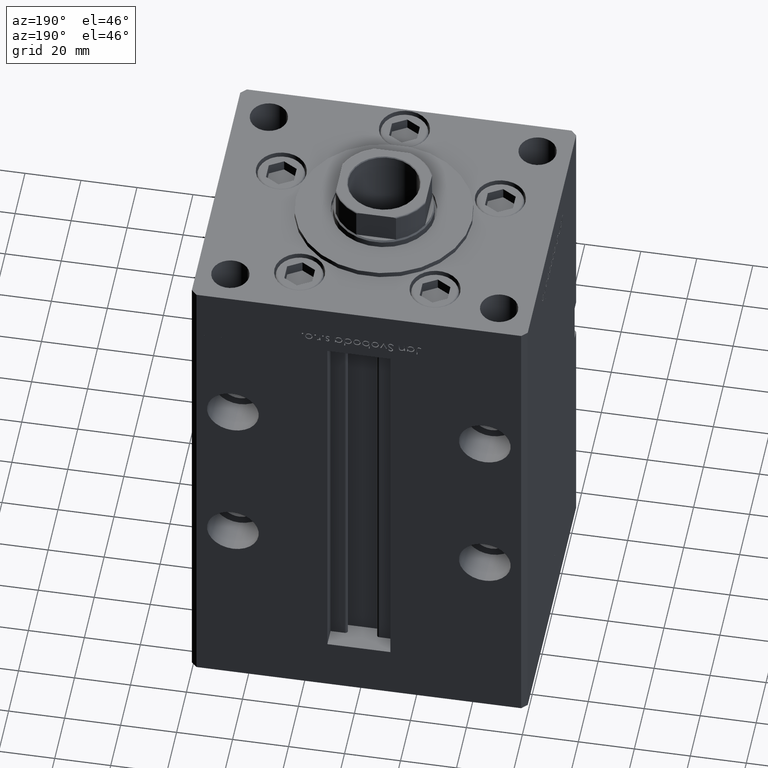
[diagram: clean part render]
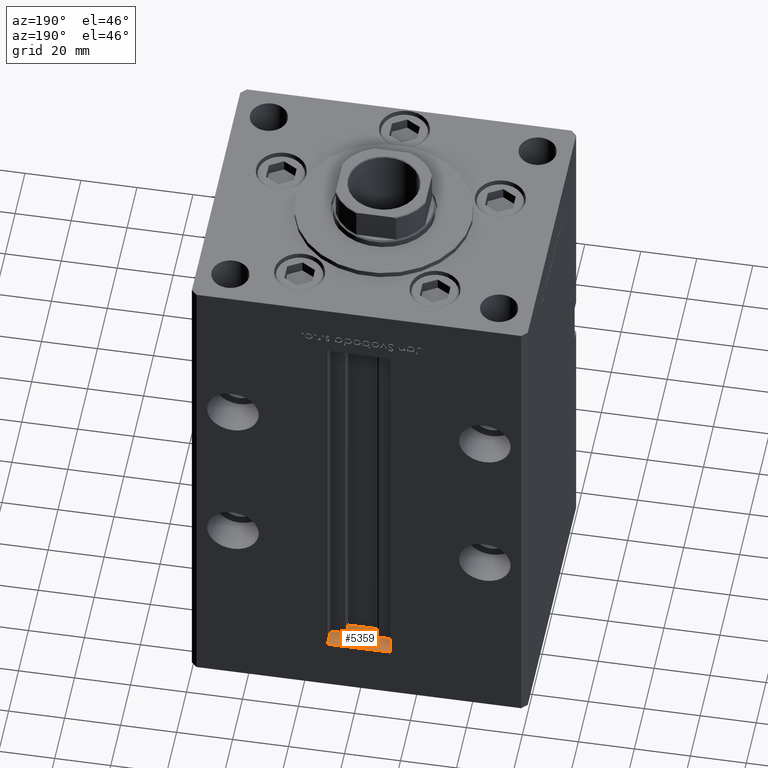
[diagram: same view with one face highlighted and labeled with its STEP entity id]
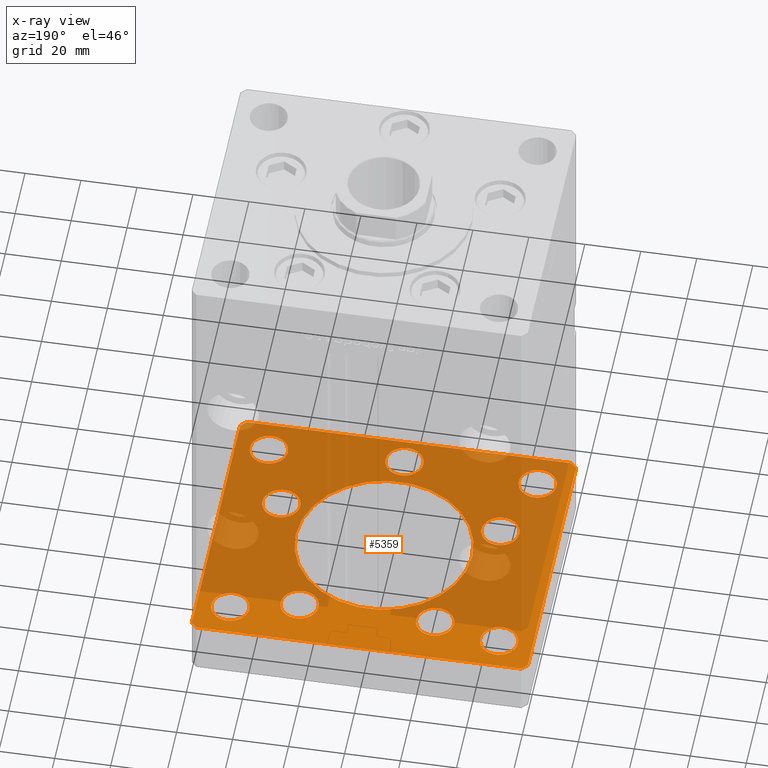
[diagram: x-ray of the same camera — body ghosted, the highlighted face saturated]
A machine part, auxiliary view. The second image highlights one B-rep face of the part: STEP entity #5359.
The next image is the same camera in x-ray: the body ghosted, the highlighted face saturated — about 74% of this face is hidden behind the body in this view.
In plain terms, the highlighted planar face has unit normal (0, 0, -1).
Its self-contained STEP definition (entity closure, byte-faithful):
#24 = AXIS2_PLACEMENT_3D ( 'NONE', #49229, #52721, #40404 ) ;
#58 = DIRECTION ( 'NONE',  ( 0.000000000000000000, -0.000000000000000000, -1.000000000000000000 ) ) ;
#188 = EDGE_CURVE ( 'NONE', #40226, #52494, #6678, .T. ) ;
#453 = ORIENTED_EDGE ( 'NONE', *, *, #52392, .T. ) ;
#635 = EDGE_CURVE ( 'NONE', #25188, #37324, #7538, .T. ) ;
#658 = CARTESIAN_POINT ( 'NONE',  ( -48.00000000000000000, 39.00000000000000000, -20.00000000000000000 ) ) ;
#704 = DIRECTION ( 'NONE',  ( -0.000000000000000000, -0.000000000000000000, -1.000000000000000000 ) ) ;
#788 = EDGE_LOOP ( 'NONE', ( #5692, #34597 ) ) ;
#973 = DIRECTION ( 'NONE',  ( 1.000000000000000000, 0.000000000000000000, 0.000000000000000000 ) ) ;
#1084 = DIRECTION ( 'NONE',  ( 1.000000000000000000, 0.000000000000000000, 0.000000000000000000 ) ) ;
#1179 = DIRECTION ( 'NONE',  ( 0.000000000000000000, -0.000000000000000000, -1.000000000000000000 ) ) ;
#1357 = ORIENTED_EDGE ( 'NONE', *, *, #23489, .F. ) ;
#1567 = AXIS2_PLACEMENT_3D ( 'NONE', #8333, #41565, #32993 ) ;
#1675 = CIRCLE ( 'NONE', #5072, 6.749999999999999112 ) ;
#1976 = LINE ( 'NONE', #38967, #15994 ) ;
#2036 = CARTESIAN_POINT ( 'NONE',  ( -45.87657522565562829, -13.83333333333333925, -20.00000000000000000 ) ) ;
#2358 = EDGE_CURVE ( 'NONE', #39628, #47877, #22417, .T. ) ;
#2520 = DIRECTION ( 'NONE',  ( 0.000000000000000000, -0.000000000000000000, -1.000000000000000000 ) ) ;
#2611 = DIRECTION ( 'NONE',  ( -1.000000000000000000, -2.392722035830079958E-16, 0.000000000000000000 ) ) ;
#2921 = VECTOR ( 'NONE', #37451, 1000.000000000000000 ) ;
#2968 = LINE ( 'NONE', #42726, #51346 ) ;
#3139 = CARTESIAN_POINT ( 'NONE',  ( 57.99999999999993605, 51.00000000000000711, -20.00000000000000000 ) ) ;
#3150 = CIRCLE ( 'NONE', #48545, 6.749999999999999112 ) ;
#3283 = VERTEX_POINT ( 'NONE', #14307 ) ;
#3291 = ORIENTED_EDGE ( 'NONE', *, *, #38040, .F. ) ;
#3431 = CIRCLE ( 'NONE', #32548, 6.749999999999999112 ) ;
#3681 = LINE ( 'NONE', #20566, #15436 ) ;
#3935 = FACE_BOUND ( 'NONE', #39755, .T. ) ;
#3958 = VERTEX_POINT ( 'NONE', #24824 ) ;
#4201 = DIRECTION ( 'NONE',  ( -0.7071067811865451302, -0.7071067811865500152, 0.000000000000000000 ) ) ;
#4332 = CARTESIAN_POINT ( 'NONE',  ( 0.000000000000000000, 0.000000000000000000, -20.00000000000000000 ) ) ;
#4767 = CARTESIAN_POINT ( 'NONE',  ( 45.87657522565562829, -13.83333333333332860, -20.00000000000000000 ) ) ;
#4934 = VERTEX_POINT ( 'NONE', #38057 ) ;
#4960 = EDGE_CURVE ( 'NONE', #15959, #14660, #13665, .T. ) ;
#5072 = AXIS2_PLACEMENT_3D ( 'NONE', #5196, #1179, #29849 ) ;
#5196 = CARTESIAN_POINT ( 'NONE',  ( -39.12657522565562829, -13.83333333333333925, -20.00000000000000000 ) ) ;
#5237 = DIRECTION ( 'NONE',  ( -1.000000000000000000, 0.000000000000000000, 0.000000000000000000 ) ) ;
#5359 = ADVANCED_FACE ( 'NONE', ( #45210, #3935, #40658, #20298, #32345, #24057, #32618, #28838, #20037, #23776, #48706 ), #37163, .F. ) ;
#5692 = ORIENTED_EDGE ( 'NONE', *, *, #635, .F. ) ;
#5820 = CARTESIAN_POINT ( 'NONE',  ( -48.00000000000000000, 39.00000000000000000, -20.00000000000000000 ) ) ;
#5989 = DIRECTION ( 'NONE',  ( 1.000000000000000000, 0.000000000000000000, 0.000000000000000000 ) ) ;
#6029 = CARTESIAN_POINT ( 'NONE',  ( -31.50000000000000000, 3.857637417314161900E-15, -20.00000000000000000 ) ) ;
#6525 = VECTOR ( 'NONE', #2611, 1000.000000000000000 ) ;
#6678 = CIRCLE ( 'NONE', #44366, 6.749999999999999112 ) ;
#6736 = DIRECTION ( 'NONE',  ( -1.000000000000000000, 0.000000000000000000, 0.000000000000000000 ) ) ;
#6974 = CARTESIAN_POINT ( 'NONE',  ( 59.99999999999994316, 49.00000000000000000, -20.00000000000000000 ) ) ;
#7070 = DIRECTION ( 'NONE',  ( -1.000000000000000000, 0.000000000000000000, 0.000000000000000000 ) ) ;
#7417 = CIRCLE ( 'NONE', #33923, 6.749999999999999112 ) ;
#7538 = CIRCLE ( 'NONE', #52940, 6.749999999999999112 ) ;
#7645 = EDGE_LOOP ( 'NONE', ( #1357, #3291 ) ) ;
#7961 = DIRECTION ( 'NONE',  ( 1.000000000000000000, 0.000000000000000000, 0.000000000000000000 ) ) ;
#8221 = DIRECTION ( 'NONE',  ( 0.000000000000000000, -0.000000000000000000, -1.000000000000000000 ) ) ;
#8333 = CARTESIAN_POINT ( 'NONE',  ( 39.12657522565562829, -13.83333333333332860, -20.00000000000000000 ) ) ;
#8377 = VERTEX_POINT ( 'NONE', #16500 ) ;
#8450 = CARTESIAN_POINT ( 'NONE',  ( 5.082284216461515748E-15, -41.50000000000000000, -20.00000000000000000 ) ) ;
#8465 = VECTOR ( 'NONE', #34714, 1000.000000000000000 ) ;
#8496 = EDGE_CURVE ( 'NONE', #48872, #11826, #1675, .T. ) ;
#9548 = ORIENTED_EDGE ( 'NONE', *, *, #34003, .F. ) ;
#9954 = VERTEX_POINT ( 'NONE', #32027 ) ;
#10329 = CARTESIAN_POINT ( 'NONE',  ( 6.750000000000004441, -41.50000000000000000, -20.00000000000000000 ) ) ;
#10368 = ORIENTED_EDGE ( 'NONE', *, *, #8496, .F. ) ;
#10475 = CARTESIAN_POINT ( 'NONE',  ( 58.00000000000000000, -51.00000000000000711, -20.00000000000000000 ) ) ;
#10612 = ORIENTED_EDGE ( 'NONE', *, *, #2358, .F. ) ;
#10729 = EDGE_CURVE ( 'NONE', #25001, #3958, #50805, .T. ) ;
#10773 = CARTESIAN_POINT ( 'NONE',  ( -48.00000000000000000, -39.00000000000000000, -20.00000000000000000 ) ) ;
#10923 = CARTESIAN_POINT ( 'NONE',  ( 60.00000000000001421, -48.99999999999999289, -20.00000000000000000 ) ) ;
#11826 = VERTEX_POINT ( 'NONE', #2036 ) ;
#11835 = CARTESIAN_POINT ( 'NONE',  ( -30.94288941894911815, 33.71875000000000000, -20.00000000000000000 ) ) ;
#11966 = CARTESIAN_POINT ( 'NONE',  ( 32.37657522565562829, -13.83333333333332860, -20.00000000000000000 ) ) ;
#13012 = DIRECTION ( 'NONE',  ( 1.000000000000000000, 0.000000000000000000, 0.000000000000000000 ) ) ;
#13063 = CARTESIAN_POINT ( 'NONE',  ( -60.00000000000000000, 48.99999999999995737, -20.00000000000000000 ) ) ;
#13145 = EDGE_CURVE ( 'NONE', #16616, #4934, #32898, .T. ) ;
#13189 = DIRECTION ( 'NONE',  ( 1.000000000000000000, 1.196361017915039486E-16, 0.000000000000000000 ) ) ;
#13665 = CIRCLE ( 'NONE', #28208, 6.749999999999999112 ) ;
#13678 = CARTESIAN_POINT ( 'NONE',  ( 24.19288941894911460, 33.71875000000000711, -20.00000000000000000 ) ) ;
#14307 = CARTESIAN_POINT ( 'NONE',  ( -57.99999999999997868, -51.00000000000001421, -20.00000000000000000 ) ) ;
#14508 = ORIENTED_EDGE ( 'NONE', *, *, #24614, .F. ) ;
#14660 = VERTEX_POINT ( 'NONE', #29977 ) ;
#14866 = DIRECTION ( 'NONE',  ( -0.000000000000000000, -0.000000000000000000, -1.000000000000000000 ) ) ;
#14887 = ORIENTED_EDGE ( 'NONE', *, *, #25359, .T. ) ;
#14939 = LINE ( 'NONE', #3139, #6525 ) ;
#15142 = VERTEX_POINT ( 'NONE', #20467 ) ;
#15240 = CIRCLE ( 'NONE', #28928, 6.749999999999999112 ) ;
#15436 = VECTOR ( 'NONE', #4201, 1000.000000000000114 ) ;
#15742 = CARTESIAN_POINT ( 'NONE',  ( 58.00000000000000000, -51.00000000000000711, -20.00000000000000000 ) ) ;
#15795 = VERTEX_POINT ( 'NONE', #11966 ) ;
#15939 = VERTEX_POINT ( 'NONE', #25331 ) ;
#15959 = VERTEX_POINT ( 'NONE', #48953 ) ;
#15994 = VECTOR ( 'NONE', #34936, 1000.000000000000000 ) ;
#16252 = DIRECTION ( 'NONE',  ( 0.000000000000000000, 0.000000000000000000, 1.000000000000000000 ) ) ;
#16299 = ORIENTED_EDGE ( 'NONE', *, *, #13145, .F. ) ;
#16500 = CARTESIAN_POINT ( 'NONE',  ( 31.50000000000000000, 0.000000000000000000, -20.00000000000000000 ) ) ;
#16616 = VERTEX_POINT ( 'NONE', #43667 ) ;
#17015 = ORIENTED_EDGE ( 'NONE', *, *, #29073, .F. ) ;
#17557 = ORIENTED_EDGE ( 'NONE', *, *, #10729, .T. ) ;
#17612 = CIRCLE ( 'NONE', #24467, 31.50000000000000000 ) ;
#18661 = ORIENTED_EDGE ( 'NONE', *, *, #52579, .F. ) ;
#18875 = CARTESIAN_POINT ( 'NONE',  ( 5.082284216461515748E-15, -41.50000000000000000, -20.00000000000000000 ) ) ;
#18983 = EDGE_LOOP ( 'NONE', ( #28930, #26696 ) ) ;
#19981 = CARTESIAN_POINT ( 'NONE',  ( -54.75000000000000000, 39.00000000000000000, -20.00000000000000000 ) ) ;
#20037 = FACE_OUTER_BOUND ( 'NONE', #20852, .T. ) ;
#20298 = FACE_BOUND ( 'NONE', #18983, .T. ) ;
#20467 = CARTESIAN_POINT ( 'NONE',  ( 57.99999999999993605, 51.00000000000000711, -20.00000000000000000 ) ) ;
#20501 = EDGE_CURVE ( 'NONE', #47877, #15142, #1976, .T. ) ;
#20545 = CIRCLE ( 'NONE', #35937, 6.749999999999999112 ) ;
#20566 = CARTESIAN_POINT ( 'NONE',  ( -57.99999999999999289, 50.99999999999997868, -20.00000000000000000 ) ) ;
#20852 = EDGE_LOOP ( 'NONE', ( #50003, #16299, #38429, #14508, #41653, #10612, #25891, #44784 ) ) ;
#21223 = CIRCLE ( 'NONE', #51159, 6.749999999999999112 ) ;
#21436 = EDGE_CURVE ( 'NONE', #11826, #48872, #3150, .T. ) ;
#21476 = CARTESIAN_POINT ( 'NONE',  ( 39.12657522565562829, -13.83333333333332860, -20.00000000000000000 ) ) ;
#21784 = DIRECTION ( 'NONE',  ( 0.000000000000000000, -0.000000000000000000, -1.000000000000000000 ) ) ;
#21791 = EDGE_CURVE ( 'NONE', #15795, #39876, #50214, .T. ) ;
#22417 = LINE ( 'NONE', #39552, #8465 ) ;
#22550 = EDGE_CURVE ( 'NONE', #8377, #30988, #17612, .T. ) ;
#23489 = EDGE_CURVE ( 'NONE', #27494, #33641, #36486, .T. ) ;
#23776 = FACE_BOUND ( 'NONE', #44227, .T. ) ;
#23806 = CARTESIAN_POINT ( 'NONE',  ( -41.25000000000000000, -39.00000000000000000, -20.00000000000000000 ) ) ;
#24057 = FACE_BOUND ( 'NONE', #788, .T. ) ;
#24303 = LINE ( 'NONE', #15742, #48891 ) ;
#24467 = AXIS2_PLACEMENT_3D ( 'NONE', #4332, #58, #36238 ) ;
#24614 = EDGE_CURVE ( 'NONE', #15142, #41527, #14939, .T. ) ;
#24701 = DIRECTION ( 'NONE',  ( -0.000000000000000000, -0.000000000000000000, -1.000000000000000000 ) ) ;
#24824 = CARTESIAN_POINT ( 'NONE',  ( -41.25000000000000000, 39.00000000000000000, -20.00000000000000000 ) ) ;
#25001 = VERTEX_POINT ( 'NONE', #19981 ) ;
#25103 = CARTESIAN_POINT ( 'NONE',  ( 48.00000000000000000, -38.99999999999999289, -20.00000000000000000 ) ) ;
#25188 = VERTEX_POINT ( 'NONE', #41393 ) ;
#25331 = CARTESIAN_POINT ( 'NONE',  ( 54.75000000000000000, -38.99999999999999289, -20.00000000000000000 ) ) ;
#25359 = EDGE_CURVE ( 'NONE', #3958, #25001, #7417, .T. ) ;
#25471 = EDGE_LOOP ( 'NONE', ( #48794, #18661 ) ) ;
#25685 = CIRCLE ( 'NONE', #29953, 6.749999999999999112 ) ;
#25891 = ORIENTED_EDGE ( 'NONE', *, *, #36236, .F. ) ;
#26565 = EDGE_CURVE ( 'NONE', #37324, #25188, #52825, .T. ) ;
#26696 = ORIENTED_EDGE ( 'NONE', *, *, #21791, .F. ) ;
#26907 = CARTESIAN_POINT ( 'NONE',  ( -39.12657522565562829, -13.83333333333333925, -20.00000000000000000 ) ) ;
#26956 = CARTESIAN_POINT ( 'NONE',  ( 54.75000000000000000, 38.99999999999999289, -20.00000000000000000 ) ) ;
#27110 = DIRECTION ( 'NONE',  ( -0.000000000000000000, -0.000000000000000000, -1.000000000000000000 ) ) ;
#27494 = VERTEX_POINT ( 'NONE', #23806 ) ;
#27781 = DIRECTION ( 'NONE',  ( 0.7071067811865474617, 0.7071067811865474617, 0.000000000000000000 ) ) ;
#27952 = ORIENTED_EDGE ( 'NONE', *, *, #188, .F. ) ;
#28208 = AXIS2_PLACEMENT_3D ( 'NONE', #13678, #34554, #1084 ) ;
#28782 = AXIS2_PLACEMENT_3D ( 'NONE', #32208, #24701, #48567 ) ;
#28838 = FACE_BOUND ( 'NONE', #46354, .T. ) ;
#28928 = AXIS2_PLACEMENT_3D ( 'NONE', #48377, #14866, #7070 ) ;
#28930 = ORIENTED_EDGE ( 'NONE', *, *, #50900, .F. ) ;
#29073 = EDGE_CURVE ( 'NONE', #15939, #35999, #15240, .T. ) ;
#29086 = CARTESIAN_POINT ( 'NONE',  ( 48.00000000000000000, 38.99999999999999289, -20.00000000000000000 ) ) ;
#29691 = AXIS2_PLACEMENT_3D ( 'NONE', #44165, #8221, #7961 ) ;
#29849 = DIRECTION ( 'NONE',  ( 1.000000000000000000, 0.000000000000000000, 0.000000000000000000 ) ) ;
#29953 = AXIS2_PLACEMENT_3D ( 'NONE', #10773, #27110, #6736 ) ;
#29977 = CARTESIAN_POINT ( 'NONE',  ( 17.44288941894911460, 33.71875000000000711, -20.00000000000000000 ) ) ;
#30011 = DIRECTION ( 'NONE',  ( 0.000000000000000000, -0.000000000000000000, -1.000000000000000000 ) ) ;
#30203 = CARTESIAN_POINT ( 'NONE',  ( 41.25000000000000000, -38.99999999999999289, -20.00000000000000000 ) ) ;
#30988 = VERTEX_POINT ( 'NONE', #6029 ) ;
#31370 = AXIS2_PLACEMENT_3D ( 'NONE', #21476, #30011, #49881 ) ;
#31757 = CARTESIAN_POINT ( 'NONE',  ( 0.000000000000000000, 0.000000000000000000, -20.00000000000000000 ) ) ;
#32027 = CARTESIAN_POINT ( 'NONE',  ( 41.25000000000000000, 38.99999999999999289, -20.00000000000000000 ) ) ;
#32208 = CARTESIAN_POINT ( 'NONE',  ( -48.00000000000000000, -39.00000000000000000, -20.00000000000000000 ) ) ;
#32318 = DIRECTION ( 'NONE',  ( 1.000000000000000000, 0.000000000000000000, 0.000000000000000000 ) ) ;
#32345 = FACE_BOUND ( 'NONE', #46820, .T. ) ;
#32467 = EDGE_CURVE ( 'NONE', #3283, #32654, #44579, .T. ) ;
#32548 = AXIS2_PLACEMENT_3D ( 'NONE', #29086, #16252, #13012 ) ;
#32618 = FACE_BOUND ( 'NONE', #37243, .T. ) ;
#32654 = VERTEX_POINT ( 'NONE', #10475 ) ;
#32898 = LINE ( 'NONE', #13063, #2921 ) ;
#32993 = DIRECTION ( 'NONE',  ( 1.000000000000000000, 0.000000000000000000, 0.000000000000000000 ) ) ;
#33504 = EDGE_CURVE ( 'NONE', #4934, #3283, #2968, .T. ) ;
#33641 = VERTEX_POINT ( 'NONE', #48542 ) ;
#33723 = DIRECTION ( 'NONE',  ( 1.000000000000000000, 0.000000000000000000, 0.000000000000000000 ) ) ;
#33789 = ORIENTED_EDGE ( 'NONE', *, *, #21436, .F. ) ;
#33812 = VERTEX_POINT ( 'NONE', #26956 ) ;
#33820 = DIRECTION ( 'NONE',  ( 1.000000000000000000, 0.000000000000000000, 0.000000000000000000 ) ) ;
#33923 = AXIS2_PLACEMENT_3D ( 'NONE', #5820, #42052, #33723 ) ;
#33963 = EDGE_CURVE ( 'NONE', #33812, #9954, #3431, .T. ) ;
#34003 = EDGE_CURVE ( 'NONE', #52494, #40226, #20545, .T. ) ;
#34164 = VECTOR ( 'NONE', #13189, 1000.000000000000000 ) ;
#34554 = DIRECTION ( 'NONE',  ( 0.000000000000000000, -0.000000000000000000, -1.000000000000000000 ) ) ;
#34597 = ORIENTED_EDGE ( 'NONE', *, *, #26565, .F. ) ;
#34714 = DIRECTION ( 'NONE',  ( -7.080503983578803823E-16, 1.000000000000000000, 0.000000000000000000 ) ) ;
#34894 = AXIS2_PLACEMENT_3D ( 'NONE', #37424, #41199, #973 ) ;
#34936 = DIRECTION ( 'NONE',  ( -0.7071067811865487940, 0.7071067811865463515, 0.000000000000000000 ) ) ;
#35249 = EDGE_CURVE ( 'NONE', #14660, #15959, #49698, .T. ) ;
#35393 = DIRECTION ( 'NONE',  ( 0.7071067811865474617, -0.7071067811865474617, 0.000000000000000000 ) ) ;
#35761 = DIRECTION ( 'NONE',  ( 0.000000000000000000, -0.000000000000000000, -1.000000000000000000 ) ) ;
#35937 = AXIS2_PLACEMENT_3D ( 'NONE', #8450, #48948, #32318 ) ;
#35999 = VERTEX_POINT ( 'NONE', #30203 ) ;
#36152 = DIRECTION ( 'NONE',  ( 1.000000000000000000, 0.000000000000000000, 0.000000000000000000 ) ) ;
#36236 = EDGE_CURVE ( 'NONE', #32654, #39628, #24303, .T. ) ;
#36238 = DIRECTION ( 'NONE',  ( 1.000000000000000000, 0.000000000000000000, 0.000000000000000000 ) ) ;
#36486 = CIRCLE ( 'NONE', #28782, 6.749999999999999112 ) ;
#36641 = CIRCLE ( 'NONE', #41763, 31.50000000000000000 ) ;
#36865 = DIRECTION ( 'NONE',  ( 0.000000000000000000, 0.000000000000000000, 1.000000000000000000 ) ) ;
#37163 = PLANE ( 'NONE',  #24 ) ;
#37243 = EDGE_LOOP ( 'NONE', ( #37707, #453 ) ) ;
#37324 = VERTEX_POINT ( 'NONE', #11835 ) ;
#37424 = CARTESIAN_POINT ( 'NONE',  ( 48.00000000000000000, 38.99999999999999289, -20.00000000000000000 ) ) ;
#37451 = DIRECTION ( 'NONE',  ( 0.000000000000000000, -1.000000000000000000, 0.000000000000000000 ) ) ;
#37707 = ORIENTED_EDGE ( 'NONE', *, *, #33963, .T. ) ;
#38040 = EDGE_CURVE ( 'NONE', #33641, #27494, #25685, .T. ) ;
#38057 = CARTESIAN_POINT ( 'NONE',  ( -60.00000000000000000, -49.00000000000000000, -20.00000000000000000 ) ) ;
#38425 = CIRCLE ( 'NONE', #34894, 6.749999999999999112 ) ;
#38429 = ORIENTED_EDGE ( 'NONE', *, *, #38807, .F. ) ;
#38807 = EDGE_CURVE ( 'NONE', #41527, #16616, #3681, .T. ) ;
#38967 = CARTESIAN_POINT ( 'NONE',  ( 59.99999999999994316, 49.00000000000000000, -20.00000000000000000 ) ) ;
#39513 = ORIENTED_EDGE ( 'NONE', *, *, #35249, .F. ) ;
#39552 = CARTESIAN_POINT ( 'NONE',  ( 60.00000000000001421, -48.99999999999999289, -20.00000000000000000 ) ) ;
#39628 = VERTEX_POINT ( 'NONE', #10923 ) ;
#39755 = EDGE_LOOP ( 'NONE', ( #10368, #33789 ) ) ;
#39869 = EDGE_LOOP ( 'NONE', ( #9548, #27952 ) ) ;
#39876 = VERTEX_POINT ( 'NONE', #4767 ) ;
#40226 = VERTEX_POINT ( 'NONE', #47508 ) ;
#40404 = DIRECTION ( 'NONE',  ( 1.000000000000000000, 0.000000000000000000, 0.000000000000000000 ) ) ;
#40570 = ORIENTED_EDGE ( 'NONE', *, *, #4960, .F. ) ;
#40658 = FACE_BOUND ( 'NONE', #39869, .T. ) ;
#41003 = CARTESIAN_POINT ( 'NONE',  ( -57.99999999999999289, 50.99999999999997868, -20.00000000000000000 ) ) ;
#41199 = DIRECTION ( 'NONE',  ( 0.000000000000000000, 0.000000000000000000, 1.000000000000000000 ) ) ;
#41393 = CARTESIAN_POINT ( 'NONE',  ( -17.44288941894912170, 33.71875000000000000, -20.00000000000000000 ) ) ;
#41527 = VERTEX_POINT ( 'NONE', #41003 ) ;
#41565 = DIRECTION ( 'NONE',  ( 0.000000000000000000, -0.000000000000000000, -1.000000000000000000 ) ) ;
#41653 = ORIENTED_EDGE ( 'NONE', *, *, #20501, .F. ) ;
#41763 = AXIS2_PLACEMENT_3D ( 'NONE', #31757, #35761, #43821 ) ;
#41991 = AXIS2_PLACEMENT_3D ( 'NONE', #42403, #21784, #33820 ) ;
#42052 = DIRECTION ( 'NONE',  ( 0.000000000000000000, 0.000000000000000000, 1.000000000000000000 ) ) ;
#42123 = CARTESIAN_POINT ( 'NONE',  ( -57.99999999999997868, -51.00000000000001421, -20.00000000000000000 ) ) ;
#42403 = CARTESIAN_POINT ( 'NONE',  ( 24.19288941894911460, 33.71875000000000711, -20.00000000000000000 ) ) ;
#42726 = CARTESIAN_POINT ( 'NONE',  ( -60.00000000000000000, -49.00000000000000000, -20.00000000000000000 ) ) ;
#42739 = DIRECTION ( 'NONE',  ( 0.000000000000000000, -0.000000000000000000, -1.000000000000000000 ) ) ;
#43667 = CARTESIAN_POINT ( 'NONE',  ( -60.00000000000000000, 48.99999999999995737, -20.00000000000000000 ) ) ;
#43821 = DIRECTION ( 'NONE',  ( 1.000000000000000000, 0.000000000000000000, 0.000000000000000000 ) ) ;
#44165 = CARTESIAN_POINT ( 'NONE',  ( -24.19288941894912170, 33.71875000000000000, -20.00000000000000000 ) ) ;
#44196 = DIRECTION ( 'NONE',  ( 0.000000000000000000, -0.000000000000000000, -1.000000000000000000 ) ) ;
#44227 = EDGE_LOOP ( 'NONE', ( #17015, #52116 ) ) ;
#44366 = AXIS2_PLACEMENT_3D ( 'NONE', #18875, #42739, #5989 ) ;
#44579 = LINE ( 'NONE', #42123, #34164 ) ;
#44734 = CARTESIAN_POINT ( 'NONE',  ( -24.19288941894912170, 33.71875000000000000, -20.00000000000000000 ) ) ;
#44784 = ORIENTED_EDGE ( 'NONE', *, *, #32467, .F. ) ;
#44822 = AXIS2_PLACEMENT_3D ( 'NONE', #658, #36865, #44904 ) ;
#44904 = DIRECTION ( 'NONE',  ( 1.000000000000000000, 0.000000000000000000, 0.000000000000000000 ) ) ;
#45210 = FACE_BOUND ( 'NONE', #25471, .T. ) ;
#46354 = EDGE_LOOP ( 'NONE', ( #14887, #17557 ) ) ;
#46820 = EDGE_LOOP ( 'NONE', ( #40570, #39513 ) ) ;
#47508 = CARTESIAN_POINT ( 'NONE',  ( -6.749999999999993783, -41.50000000000000000, -20.00000000000000000 ) ) ;
#47814 = CIRCLE ( 'NONE', #1567, 6.749999999999999112 ) ;
#47877 = VERTEX_POINT ( 'NONE', #6974 ) ;
#48377 = CARTESIAN_POINT ( 'NONE',  ( 48.00000000000000000, -38.99999999999999289, -20.00000000000000000 ) ) ;
#48542 = CARTESIAN_POINT ( 'NONE',  ( -54.75000000000000000, -39.00000000000000000, -20.00000000000000000 ) ) ;
#48545 = AXIS2_PLACEMENT_3D ( 'NONE', #26907, #2520, #51571 ) ;
#48567 = DIRECTION ( 'NONE',  ( -1.000000000000000000, 0.000000000000000000, 0.000000000000000000 ) ) ;
#48706 = FACE_BOUND ( 'NONE', #7645, .T. ) ;
#48794 = ORIENTED_EDGE ( 'NONE', *, *, #22550, .F. ) ;
#48872 = VERTEX_POINT ( 'NONE', #52508 ) ;
#48891 = VECTOR ( 'NONE', #27781, 1000.000000000000114 ) ;
#48948 = DIRECTION ( 'NONE',  ( 0.000000000000000000, -0.000000000000000000, -1.000000000000000000 ) ) ;
#48953 = CARTESIAN_POINT ( 'NONE',  ( 30.94288941894911105, 33.71875000000000711, -20.00000000000000000 ) ) ;
#49229 = CARTESIAN_POINT ( 'NONE',  ( 0.000000000000000000, 0.000000000000000000, -20.00000000000000000 ) ) ;
#49698 = CIRCLE ( 'NONE', #41991, 6.749999999999999112 ) ;
#49881 = DIRECTION ( 'NONE',  ( 1.000000000000000000, 0.000000000000000000, 0.000000000000000000 ) ) ;
#50003 = ORIENTED_EDGE ( 'NONE', *, *, #33504, .F. ) ;
#50214 = CIRCLE ( 'NONE', #31370, 6.749999999999999112 ) ;
#50805 = CIRCLE ( 'NONE', #44822, 6.749999999999999112 ) ;
#50900 = EDGE_CURVE ( 'NONE', #39876, #15795, #47814, .T. ) ;
#51159 = AXIS2_PLACEMENT_3D ( 'NONE', #25103, #704, #5237 ) ;
#51346 = VECTOR ( 'NONE', #35393, 1000.000000000000114 ) ;
#51571 = DIRECTION ( 'NONE',  ( 1.000000000000000000, 0.000000000000000000, 0.000000000000000000 ) ) ;
#52116 = ORIENTED_EDGE ( 'NONE', *, *, #52366, .F. ) ;
#52366 = EDGE_CURVE ( 'NONE', #35999, #15939, #21223, .T. ) ;
#52392 = EDGE_CURVE ( 'NONE', #9954, #33812, #38425, .T. ) ;
#52494 = VERTEX_POINT ( 'NONE', #10329 ) ;
#52508 = CARTESIAN_POINT ( 'NONE',  ( -32.37657522565562829, -13.83333333333333925, -20.00000000000000000 ) ) ;
#52579 = EDGE_CURVE ( 'NONE', #30988, #8377, #36641, .T. ) ;
#52721 = DIRECTION ( 'NONE',  ( -0.000000000000000000, 0.000000000000000000, 1.000000000000000000 ) ) ;
#52825 = CIRCLE ( 'NONE', #29691, 6.749999999999999112 ) ;
#52940 = AXIS2_PLACEMENT_3D ( 'NONE', #44734, #44196, #36152 ) ;